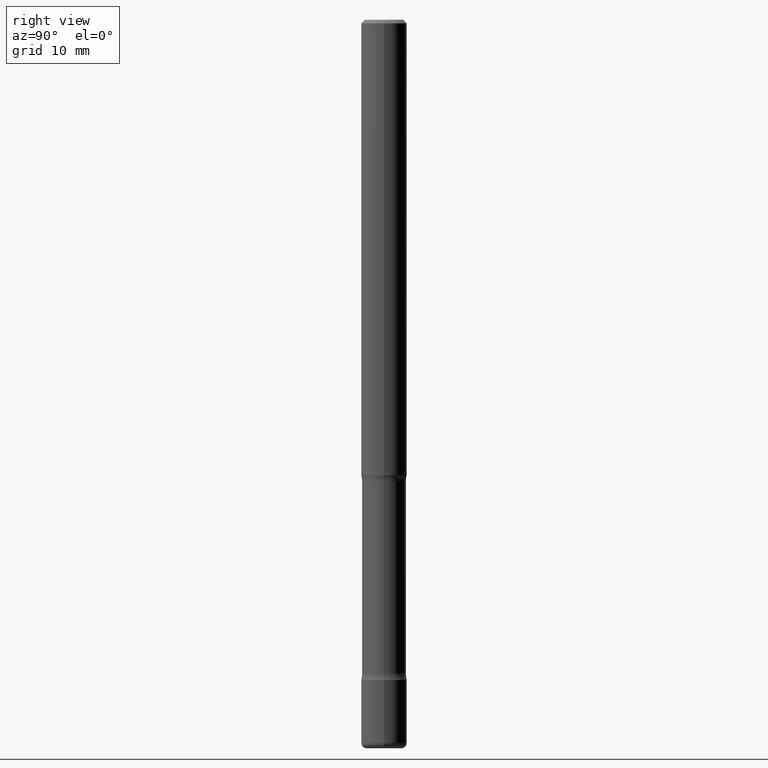
[diagram: clean part render]
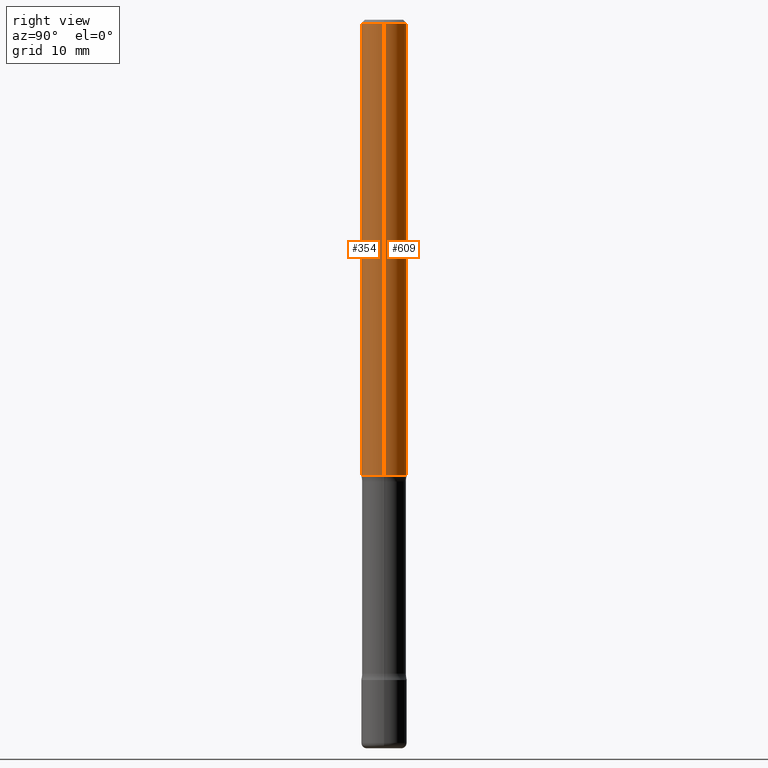
[diagram: same view with one multi-face feature highlighted, each face labeled with its STEP entity id]
A machine part, right view. The highlighted faces form ONE feature: a constant-radius fillet chain: 2 tangent blend faces with common blend radius 3.175 mm. The faces share edges in the B-rep.
Their STEP definitions:
[1] entity #354 (Cylinder):
#2 = ORIENTED_EDGE ( 'NONE', *, *, #676, .T. ) ;
#23 = DIRECTION ( 'NONE',  ( -2.445468806185136877E-29, 3.491481338843145188E-15, 1.000000000000000000 ) ) ;
#32 = DIRECTION ( 'NONE',  ( 1.000000000000000000, -6.982962677686266711E-15, 0.000000000000000000 ) ) ;
#62 = EDGE_CURVE ( 'NONE', #295, #251, #591, .T. ) ;
#69 = VECTOR ( 'NONE', #23, 39.37007874015748143 ) ;
#107 = VERTEX_POINT ( 'NONE', #774 ) ;
#117 = ORIENTED_EDGE ( 'NONE', *, *, #154, .T. ) ;
#151 = CIRCLE ( 'NONE', #337, 0.1249999999999996808 ) ;
#154 = EDGE_CURVE ( 'NONE', #107, #662, #768, .T. ) ;
#219 = CARTESIAN_POINT ( 'NONE',  ( 6.113672015462842613E-29, -8.728703347107864943E-15, -2.500000000000000000 ) ) ;
#220 = CARTESIAN_POINT ( 'NONE',  ( 0.1249999999999998335, -8.728703347107821555E-16, 6.095220969744911333E-30 ) ) ;
#225 = FACE_OUTER_BOUND ( 'NONE', #262, .T. ) ;
#251 = VERTEX_POINT ( 'NONE', #426 ) ;
#262 = EDGE_LOOP ( 'NONE', ( #411, #2, #117, #560 ) ) ;
#295 = VERTEX_POINT ( 'NONE', #680 ) ;
#337 = AXIS2_PLACEMENT_3D ( 'NONE', #472, #412, #32 ) ;
#354 = ADVANCED_FACE ( 'NONE', ( #225 ), #421, .T. ) ;
#411 = ORIENTED_EDGE ( 'NONE', *, *, #62, .F. ) ;
#412 = DIRECTION ( 'NONE',  ( -2.445468806185136597E-29, 3.491481338843145583E-15, 1.000000000000000000 ) ) ;
#421 = CYLINDRICAL_SURFACE ( 'NONE', #582, 0.1249999999999998335 ) ;
#422 = EDGE_CURVE ( 'NONE', #251, #662, #151, .T. ) ;
#426 = CARTESIAN_POINT ( 'NONE',  ( -0.1249999999999996808, 8.030407079339180685E-16, -0.02000000000000002470 ) ) ;
#431 = CIRCLE ( 'NONE', #539, 0.1250000000000000000 ) ;
#467 = DIRECTION ( 'NONE',  ( -2.445468806185136877E-29, 3.491481338843145188E-15, 1.000000000000000000 ) ) ;
#469 = DIRECTION ( 'NONE',  ( 1.000000000000000000, -6.982962677686270655E-15, 0.000000000000000000 ) ) ;
#472 = CARTESIAN_POINT ( 'NONE',  ( 4.890937612370279289E-31, -6.982962677686299005E-17, -0.02000000000000002470 ) ) ;
#482 = VECTOR ( 'NONE', #467, 39.37007874015748143 ) ;
#539 = AXIS2_PLACEMENT_3D ( 'NONE', #219, #721, #469 ) ;
#560 = ORIENTED_EDGE ( 'NONE', *, *, #422, .F. ) ;
#582 = AXIS2_PLACEMENT_3D ( 'NONE', #777, #658, #767 ) ;
#591 = LINE ( 'NONE', #652, #69 ) ;
#607 = CARTESIAN_POINT ( 'NONE',  ( 0.1249999999999996808, -9.273918764983021797E-16, -0.02000000000000002470 ) ) ;
#652 = CARTESIAN_POINT ( 'NONE',  ( -0.1249999999999998335, 8.881784197001240490E-16, -6.148668862818623819E-30 ) ) ;
#658 = DIRECTION ( 'NONE',  ( -2.445468806185136597E-29, 3.491481338843145583E-15, 1.000000000000000000 ) ) ;
#662 = VERTEX_POINT ( 'NONE', #607 ) ;
#676 = EDGE_CURVE ( 'NONE', #295, #107, #431, .T. ) ;
#680 = CARTESIAN_POINT ( 'NONE',  ( -0.1250000000000000000, -3.511088067242232972E-15, -2.500000000000000000 ) ) ;
#721 = DIRECTION ( 'NONE',  ( -2.445468806185136597E-29, 3.491481338843145583E-15, 1.000000000000000000 ) ) ;
#767 = DIRECTION ( 'NONE',  ( 1.000000000000000000, -6.982962677686266711E-15, 4.876176775795935793E-29 ) ) ;
#768 = LINE ( 'NONE', #220, #482 ) ;
#774 = CARTESIAN_POINT ( 'NONE',  ( 0.1250000000000000000, -9.601573681818648281E-15, -2.500000000000000000 ) ) ;
#777 = CARTESIAN_POINT ( 'NONE',  ( 0.000000000000000000, 0.000000000000000000, 0.000000000000000000 ) ) ;
[2] entity #609 (Cylinder):
#23 = DIRECTION ( 'NONE',  ( -2.445468806185136877E-29, 3.491481338843145188E-15, 1.000000000000000000 ) ) ;
#42 = AXIS2_PLACEMENT_3D ( 'NONE', #597, #223, #340 ) ;
#45 = CIRCLE ( 'NONE', #125, 0.1249999999999996808 ) ;
#62 = EDGE_CURVE ( 'NONE', #295, #251, #591, .T. ) ;
#69 = VECTOR ( 'NONE', #23, 39.37007874015748143 ) ;
#107 = VERTEX_POINT ( 'NONE', #774 ) ;
#125 = AXIS2_PLACEMENT_3D ( 'NONE', #171, #425, #664 ) ;
#154 = EDGE_CURVE ( 'NONE', #107, #662, #768, .T. ) ;
#168 = ORIENTED_EDGE ( 'NONE', *, *, #489, .T. ) ;
#171 = CARTESIAN_POINT ( 'NONE',  ( 4.890937612370279289E-31, -6.982962677686299005E-17, -0.02000000000000002470 ) ) ;
#220 = CARTESIAN_POINT ( 'NONE',  ( 0.1249999999999998335, -8.728703347107821555E-16, 6.095220969744911333E-30 ) ) ;
#223 = DIRECTION ( 'NONE',  ( -2.445468806185136597E-29, 3.491481338843145583E-15, 1.000000000000000000 ) ) ;
#244 = AXIS2_PLACEMENT_3D ( 'NONE', #424, #663, #356 ) ;
#251 = VERTEX_POINT ( 'NONE', #426 ) ;
#295 = VERTEX_POINT ( 'NONE', #680 ) ;
#301 = EDGE_LOOP ( 'NONE', ( #168, #641, #553, #738 ) ) ;
#340 = DIRECTION ( 'NONE',  ( 1.000000000000000000, -6.982962677686266711E-15, 4.876176775795935793E-29 ) ) ;
#356 = DIRECTION ( 'NONE',  ( 1.000000000000000000, -6.982962677686270655E-15, 0.000000000000000000 ) ) ;
#424 = CARTESIAN_POINT ( 'NONE',  ( 6.113672015462842613E-29, -8.728703347107864943E-15, -2.500000000000000000 ) ) ;
#425 = DIRECTION ( 'NONE',  ( -2.445468806185136597E-29, 3.491481338843145583E-15, 1.000000000000000000 ) ) ;
#426 = CARTESIAN_POINT ( 'NONE',  ( -0.1249999999999996808, 8.030407079339180685E-16, -0.02000000000000002470 ) ) ;
#467 = DIRECTION ( 'NONE',  ( -2.445468806185136877E-29, 3.491481338843145188E-15, 1.000000000000000000 ) ) ;
#473 = FACE_OUTER_BOUND ( 'NONE', #301, .T. ) ;
#482 = VECTOR ( 'NONE', #467, 39.37007874015748143 ) ;
#489 = EDGE_CURVE ( 'NONE', #107, #295, #605, .T. ) ;
#537 = CYLINDRICAL_SURFACE ( 'NONE', #42, 0.1249999999999998335 ) ;
#553 = ORIENTED_EDGE ( 'NONE', *, *, #781, .F. ) ;
#591 = LINE ( 'NONE', #652, #69 ) ;
#597 = CARTESIAN_POINT ( 'NONE',  ( 0.000000000000000000, 0.000000000000000000, 0.000000000000000000 ) ) ;
#605 = CIRCLE ( 'NONE', #244, 0.1250000000000000000 ) ;
#607 = CARTESIAN_POINT ( 'NONE',  ( 0.1249999999999996808, -9.273918764983021797E-16, -0.02000000000000002470 ) ) ;
#609 = ADVANCED_FACE ( 'NONE', ( #473 ), #537, .T. ) ;
#641 = ORIENTED_EDGE ( 'NONE', *, *, #62, .T. ) ;
#652 = CARTESIAN_POINT ( 'NONE',  ( -0.1249999999999998335, 8.881784197001240490E-16, -6.148668862818623819E-30 ) ) ;
#662 = VERTEX_POINT ( 'NONE', #607 ) ;
#663 = DIRECTION ( 'NONE',  ( -2.445468806185136597E-29, 3.491481338843145583E-15, 1.000000000000000000 ) ) ;
#664 = DIRECTION ( 'NONE',  ( 1.000000000000000000, -6.982962677686266711E-15, 0.000000000000000000 ) ) ;
#680 = CARTESIAN_POINT ( 'NONE',  ( -0.1250000000000000000, -3.511088067242232972E-15, -2.500000000000000000 ) ) ;
#738 = ORIENTED_EDGE ( 'NONE', *, *, #154, .F. ) ;
#768 = LINE ( 'NONE', #220, #482 ) ;
#774 = CARTESIAN_POINT ( 'NONE',  ( 0.1250000000000000000, -9.601573681818648281E-15, -2.500000000000000000 ) ) ;
#781 = EDGE_CURVE ( 'NONE', #662, #251, #45, .T. ) ;